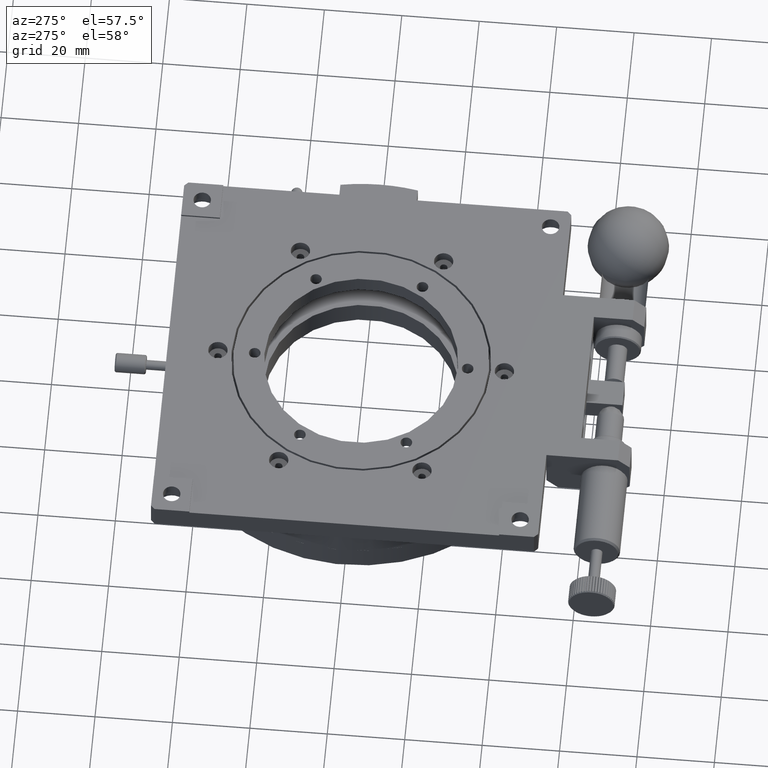
[diagram: clean part render]
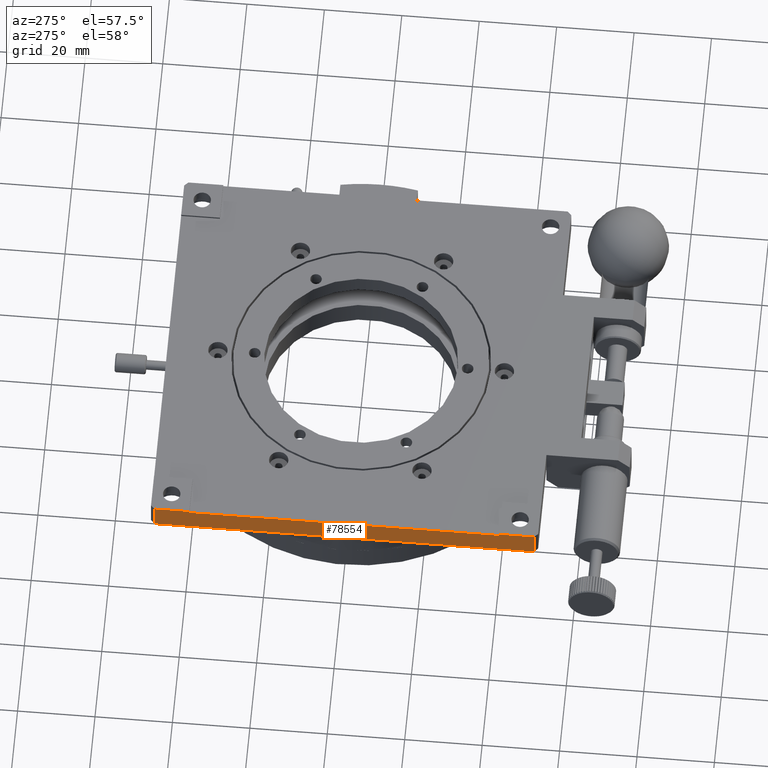
[diagram: same view with one face highlighted and labeled with its STEP entity id]
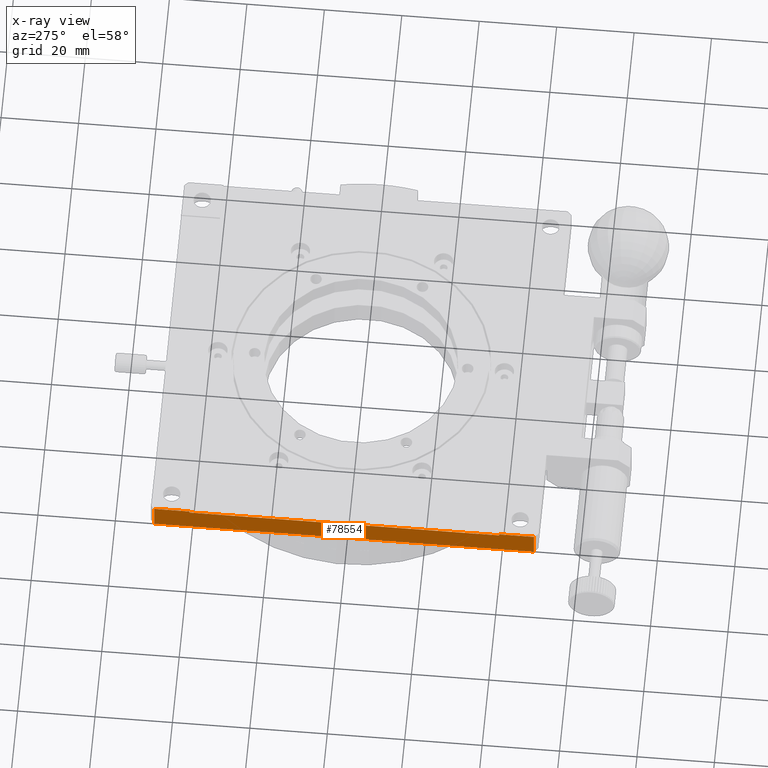
[diagram: x-ray of the same camera — body ghosted, the highlighted face saturated]
A machine part, auxiliary view. The second image highlights one B-rep face of the part: STEP entity #78554.
The next image is the same camera in x-ray: the body ghosted, the highlighted face saturated — about 0% of this face is hidden behind the body in this view.
In plain terms, the highlighted planar face has unit normal (1, 0, 0).
Its self-contained STEP definition (entity closure, byte-faithful):
#546 = VERTEX_POINT ( 'NONE', #63668 ) ;
#2101 = CARTESIAN_POINT ( 'NONE',  ( -50.00000000000000000, -49.00000000000000000, 0.5000000000000004441 ) ) ;
#3003 = LINE ( 'NONE', #58651, #66868 ) ;
#3034 = EDGE_CURVE ( 'NONE', #87226, #546, #38464, .T. ) ;
#3761 = CARTESIAN_POINT ( 'NONE',  ( -50.00000000000000000, -40.00000000000000000, 0.5000000000000001110 ) ) ;
#4067 = LINE ( 'NONE', #19238, #36131 ) ;
#5080 = ORIENTED_EDGE ( 'NONE', *, *, #51580, .F. ) ;
#5216 = VECTOR ( 'NONE', #44309, 1000.000000000000000 ) ;
#5762 = CARTESIAN_POINT ( 'NONE',  ( -50.00000000000000000, 39.99999999999999289, 0.000000000000000000 ) ) ;
#9284 = EDGE_CURVE ( 'NONE', #21734, #79624, #66532, .T. ) ;
#9622 = CARTESIAN_POINT ( 'NONE',  ( -50.00000000000000000, -49.00000000000001421, 0.5000000000000011102 ) ) ;
#9792 = LINE ( 'NONE', #23639, #5216 ) ;
#9799 = DIRECTION ( 'NONE',  ( 0.000000000000000000, -1.000000000000000000, 0.000000000000000000 ) ) ;
#10221 = VECTOR ( 'NONE', #61274, 1000.000000000000000 ) ;
#11172 = DIRECTION ( 'NONE',  ( 1.000000000000000000, 0.000000000000000000, 0.000000000000000000 ) ) ;
#11736 = EDGE_CURVE ( 'NONE', #21734, #62455, #4067, .T. ) ;
#13833 = VECTOR ( 'NONE', #87217, 1000.000000000000000 ) ;
#16607 = AXIS2_PLACEMENT_3D ( 'NONE', #87135, #11172, #9799 ) ;
#17362 = CARTESIAN_POINT ( 'NONE',  ( -50.00000000000000000, 49.00000000000000000, -6.500000000000000888 ) ) ;
#18982 = LINE ( 'NONE', #25421, #10221 ) ;
#19238 = CARTESIAN_POINT ( 'NONE',  ( -50.00000000000000000, -40.00000000000000000, -6.500000000000000888 ) ) ;
#20441 = LINE ( 'NONE', #42907, #43464 ) ;
#20499 = ORIENTED_EDGE ( 'NONE', *, *, #88568, .F. ) ;
#21734 = VERTEX_POINT ( 'NONE', #90735 ) ;
#23639 = CARTESIAN_POINT ( 'NONE',  ( -50.00000000000000000, 40.00000000000000000, 0.5000000000000000000 ) ) ;
#24294 = VECTOR ( 'NONE', #73029, 1000.000000000000000 ) ;
#25421 = CARTESIAN_POINT ( 'NONE',  ( -50.00000000000000000, -49.00000000000000000, 0.5000000000000004441 ) ) ;
#25890 = FACE_OUTER_BOUND ( 'NONE', #86342, .T. ) ;
#36127 = DIRECTION ( 'NONE',  ( 0.000000000000000000, 0.000000000000000000, -1.000000000000000000 ) ) ;
#36131 = VECTOR ( 'NONE', #45917, 1000.000000000000000 ) ;
#38464 = LINE ( 'NONE', #17362, #66707 ) ;
#41333 = EDGE_CURVE ( 'NONE', #546, #52677, #58190, .T. ) ;
#42907 = CARTESIAN_POINT ( 'NONE',  ( -50.00000000000000000, -49.00000000000000000, -6.500000000000000888 ) ) ;
#43464 = VECTOR ( 'NONE', #71014, 1000.000000000000000 ) ;
#44309 = DIRECTION ( 'NONE',  ( 0.000000000000000000, 0.000000000000000000, -1.000000000000000000 ) ) ;
#45426 = DIRECTION ( 'NONE',  ( -0.000000000000000000, -0.000000000000000000, 1.000000000000000000 ) ) ;
#45917 = DIRECTION ( 'NONE',  ( -0.000000000000000000, -0.000000000000000000, 1.000000000000000000 ) ) ;
#48514 = VERTEX_POINT ( 'NONE', #9622 ) ;
#51580 = EDGE_CURVE ( 'NONE', #52677, #79624, #9792, .T. ) ;
#52677 = VERTEX_POINT ( 'NONE', #67684 ) ;
#53597 = ORIENTED_EDGE ( 'NONE', *, *, #86450, .F. ) ;
#56942 = ORIENTED_EDGE ( 'NONE', *, *, #9284, .T. ) ;
#58190 = LINE ( 'NONE', #2101, #13833 ) ;
#58651 = CARTESIAN_POINT ( 'NONE',  ( -50.00000000000000000, -49.00000000000000000, -6.500000000000000888 ) ) ;
#61274 = DIRECTION ( 'NONE',  ( 0.000000000000000000, -1.000000000000000000, 0.000000000000000000 ) ) ;
#62455 = VERTEX_POINT ( 'NONE', #3761 ) ;
#63668 = CARTESIAN_POINT ( 'NONE',  ( -50.00000000000000000, 49.00000000000000000, 0.5000000000000028866 ) ) ;
#65083 = VERTEX_POINT ( 'NONE', #81234 ) ;
#66532 = LINE ( 'NONE', #73454, #24294 ) ;
#66707 = VECTOR ( 'NONE', #45426, 1000.000000000000000 ) ;
#66868 = VECTOR ( 'NONE', #36127, 1000.000000000000000 ) ;
#67684 = CARTESIAN_POINT ( 'NONE',  ( -50.00000000000000000, 39.99999999999999289, 0.5000000000000001110 ) ) ;
#71014 = DIRECTION ( 'NONE',  ( -0.000000000000000000, 1.000000000000000000, -0.000000000000000000 ) ) ;
#73029 = DIRECTION ( 'NONE',  ( 0.000000000000000000, 1.000000000000000000, 0.000000000000000000 ) ) ;
#73454 = CARTESIAN_POINT ( 'NONE',  ( -50.00000000000000000, -0.001999999999999399827, -0.000000000000000000 ) ) ;
#74461 = ORIENTED_EDGE ( 'NONE', *, *, #11736, .F. ) ;
#74709 = ORIENTED_EDGE ( 'NONE', *, *, #3034, .F. ) ;
#78554 = ADVANCED_FACE ( 'NONE', ( #25890 ), #88967, .F. ) ;
#79479 = CARTESIAN_POINT ( 'NONE',  ( -50.00000000000000000, 49.00000000000001421, -6.500000000000000888 ) ) ;
#79624 = VERTEX_POINT ( 'NONE', #5762 ) ;
#81234 = CARTESIAN_POINT ( 'NONE',  ( -50.00000000000000000, -49.00000000000000000, -6.500000000000000888 ) ) ;
#86342 = EDGE_LOOP ( 'NONE', ( #88139, #74461, #56942, #5080, #87935, #74709, #20499, #53597 ) ) ;
#86450 = EDGE_CURVE ( 'NONE', #48514, #65083, #3003, .T. ) ;
#87135 = CARTESIAN_POINT ( 'NONE',  ( -50.00000000000000000, -49.00000000000000000, -6.500000000000000888 ) ) ;
#87217 = DIRECTION ( 'NONE',  ( 0.000000000000000000, -1.000000000000000000, 0.000000000000000000 ) ) ;
#87226 = VERTEX_POINT ( 'NONE', #79479 ) ;
#87935 = ORIENTED_EDGE ( 'NONE', *, *, #41333, .F. ) ;
#88139 = ORIENTED_EDGE ( 'NONE', *, *, #90543, .F. ) ;
#88568 = EDGE_CURVE ( 'NONE', #65083, #87226, #20441, .T. ) ;
#88967 = PLANE ( 'NONE',  #16607 ) ;
#90543 = EDGE_CURVE ( 'NONE', #62455, #48514, #18982, .T. ) ;
#90735 = CARTESIAN_POINT ( 'NONE',  ( -50.00000000000000000, -40.00000000000000000, -0.000000000000000000 ) ) ;